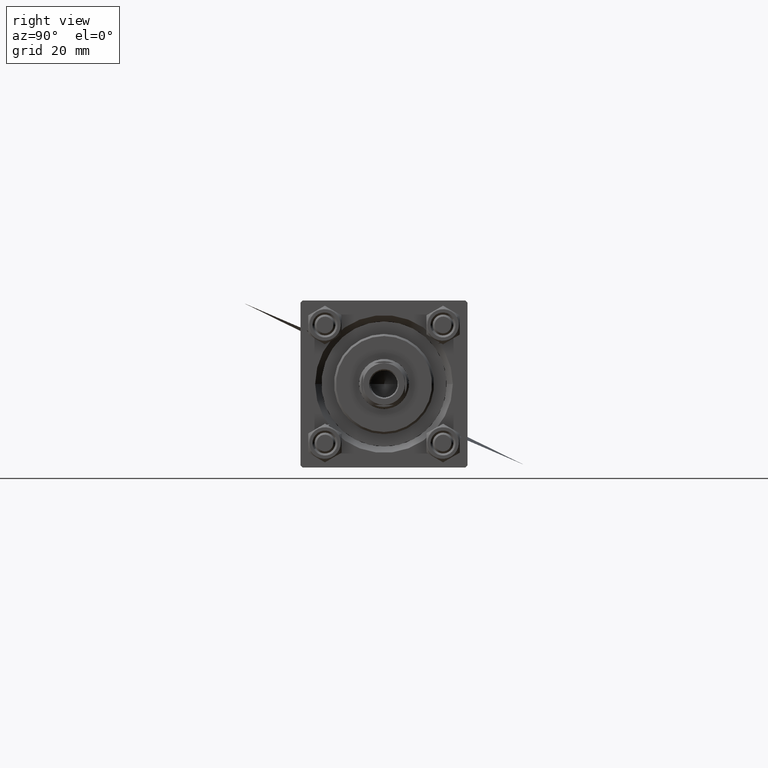
[diagram: clean part render]
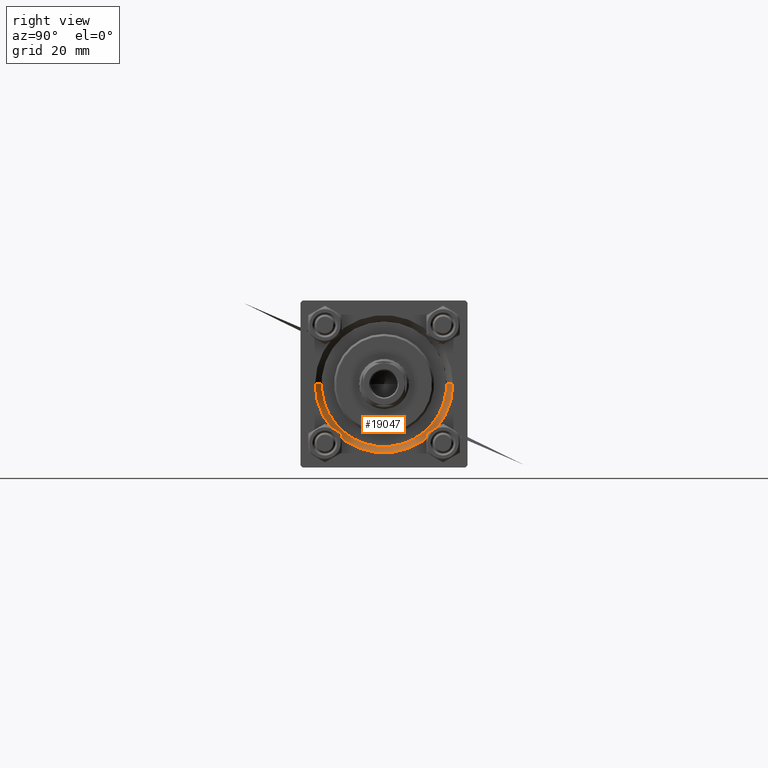
[diagram: same view with one face highlighted and labeled with its STEP entity id]
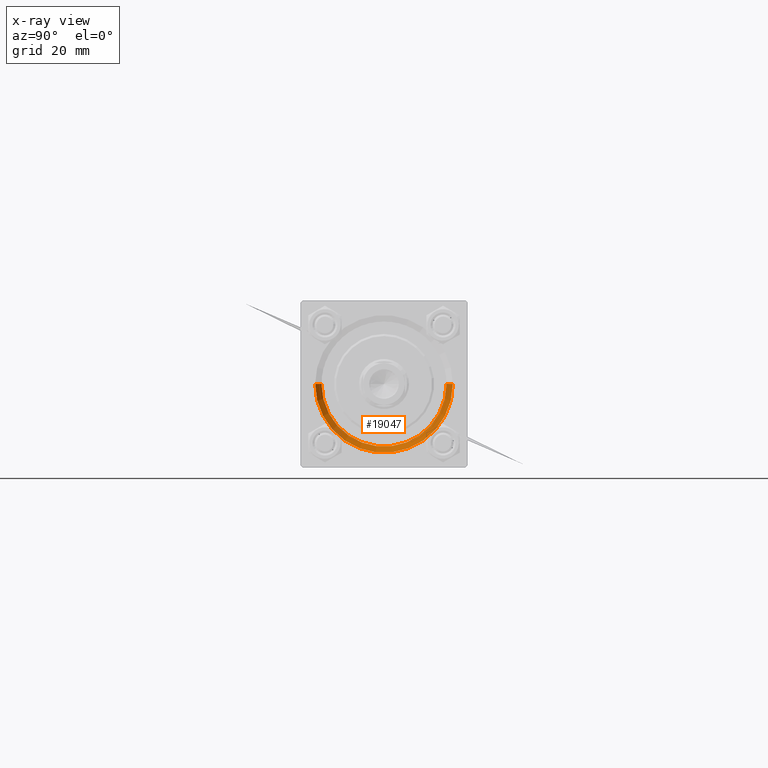
[diagram: x-ray of the same camera — body ghosted, the highlighted face saturated]
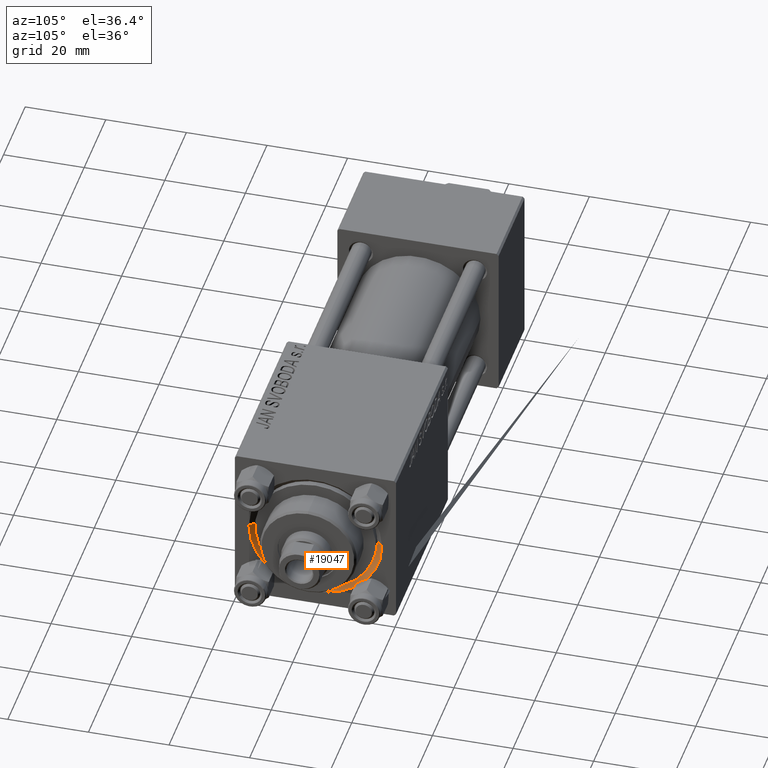
[diagram: same view with one face highlighted and labeled with its STEP entity id]
A machine part, right view. The second image highlights one B-rep face of the part: STEP entity #19047.
The next image is the same camera in x-ray: the body ghosted, the highlighted face saturated — about 0% of this face is hidden behind the body in this view.
A second angle (auxiliary view) of the same face is appended — the face is thin or edge-on in the first view.
In plain terms, the highlighted conical surface has half-angle 45 deg.
Its self-contained STEP definition (entity closure, byte-faithful):
#2163 = VERTEX_POINT ( 'NONE', #42647 ) ;
#2364 = DIRECTION ( 'NONE',  ( -1.000000000000000000, -0.000000000000000000, -0.000000000000000000 ) ) ;
#3356 = ORIENTED_EDGE ( 'NONE', *, *, #17374, .F. ) ;
#4318 = VECTOR ( 'NONE', #41474, 1000.000000000000114 ) ;
#4889 = ORIENTED_EDGE ( 'NONE', *, *, #39191, .F. ) ;
#9466 = VERTEX_POINT ( 'NONE', #34013 ) ;
#9625 = VERTEX_POINT ( 'NONE', #38830 ) ;
#11692 = EDGE_LOOP ( 'NONE', ( #3356, #22290, #4889, #21201 ) ) ;
#12198 = FACE_OUTER_BOUND ( 'NONE', #11692, .T. ) ;
#13885 = AXIS2_PLACEMENT_3D ( 'NONE', #41276, #23591, #19407 ) ;
#16318 = CARTESIAN_POINT ( 'NONE',  ( 117.5000000000000000, 0.000000000000000000, 0.000000000000000000 ) ) ;
#16500 = CIRCLE ( 'NONE', #38025, 16.50000000000001421 ) ;
#17254 = CARTESIAN_POINT ( 'NONE',  ( 117.5000000000000000, 1.836970198721029589E-15, 15.00000000000000000 ) ) ;
#17374 = EDGE_CURVE ( 'NONE', #9466, #20542, #22747, .T. ) ;
#19047 = ADVANCED_FACE ( 'NONE', ( #12198 ), #33956, .F. ) ;
#19407 = DIRECTION ( 'NONE',  ( 0.000000000000000000, 0.000000000000000000, -1.000000000000000000 ) ) ;
#20113 = LINE ( 'NONE', #33643, #38918 ) ;
#20290 = LINE ( 'NONE', #17254, #4318 ) ;
#20542 = VERTEX_POINT ( 'NONE', #29146 ) ;
#21201 = ORIENTED_EDGE ( 'NONE', *, *, #42808, .F. ) ;
#22290 = ORIENTED_EDGE ( 'NONE', *, *, #25566, .T. ) ;
#22747 = CIRCLE ( 'NONE', #27971, 15.00000000000000000 ) ;
#23591 = DIRECTION ( 'NONE',  ( 1.000000000000000000, 0.000000000000000000, 0.000000000000000000 ) ) ;
#25566 = EDGE_CURVE ( 'NONE', #9466, #2163, #20290, .T. ) ;
#27028 = DIRECTION ( 'NONE',  ( 0.000000000000000000, 0.000000000000000000, 1.000000000000000000 ) ) ;
#27971 = AXIS2_PLACEMENT_3D ( 'NONE', #16318, #43786, #27028 ) ;
#29146 = CARTESIAN_POINT ( 'NONE',  ( 117.5000000000000000, 0.000000000000000000, -15.00000000000000000 ) ) ;
#33643 = CARTESIAN_POINT ( 'NONE',  ( 117.5000000000000000, 0.000000000000000000, -15.00000000000000000 ) ) ;
#33956 = CONICAL_SURFACE ( 'NONE', #13885, 15.00000000000000000, 0.7853981633974482790 ) ;
#34013 = CARTESIAN_POINT ( 'NONE',  ( 117.5000000000000000, 1.836970198721029589E-15, 15.00000000000000000 ) ) ;
#37267 = CARTESIAN_POINT ( 'NONE',  ( 119.0000000000000142, 0.000000000000000000, 0.000000000000000000 ) ) ;
#37956 = DIRECTION ( 'NONE',  ( 0.000000000000000000, 0.000000000000000000, 1.000000000000000000 ) ) ;
#38025 = AXIS2_PLACEMENT_3D ( 'NONE', #37267, #2364, #37956 ) ;
#38830 = CARTESIAN_POINT ( 'NONE',  ( 119.0000000000000142, 0.000000000000000000, -16.50000000000001421 ) ) ;
#38918 = VECTOR ( 'NONE', #44095, 1000.000000000000114 ) ;
#39191 = EDGE_CURVE ( 'NONE', #9625, #2163, #16500, .T. ) ;
#41276 = CARTESIAN_POINT ( 'NONE',  ( 117.5000000000000000, 0.000000000000000000, 0.000000000000000000 ) ) ;
#41474 = DIRECTION ( 'NONE',  ( 0.7071067811865474617, 8.659560562354932858E-17, 0.7071067811865474617 ) ) ;
#42647 = CARTESIAN_POINT ( 'NONE',  ( 119.0000000000000142, 2.020667218593134678E-15, 16.50000000000001421 ) ) ;
#42808 = EDGE_CURVE ( 'NONE', #20542, #9625, #20113, .T. ) ;
#43786 = DIRECTION ( 'NONE',  ( 1.000000000000000000, 0.000000000000000000, 0.000000000000000000 ) ) ;
#44095 = DIRECTION ( 'NONE',  ( 0.7071067811865474617, 0.000000000000000000, -0.7071067811865474617 ) ) ;